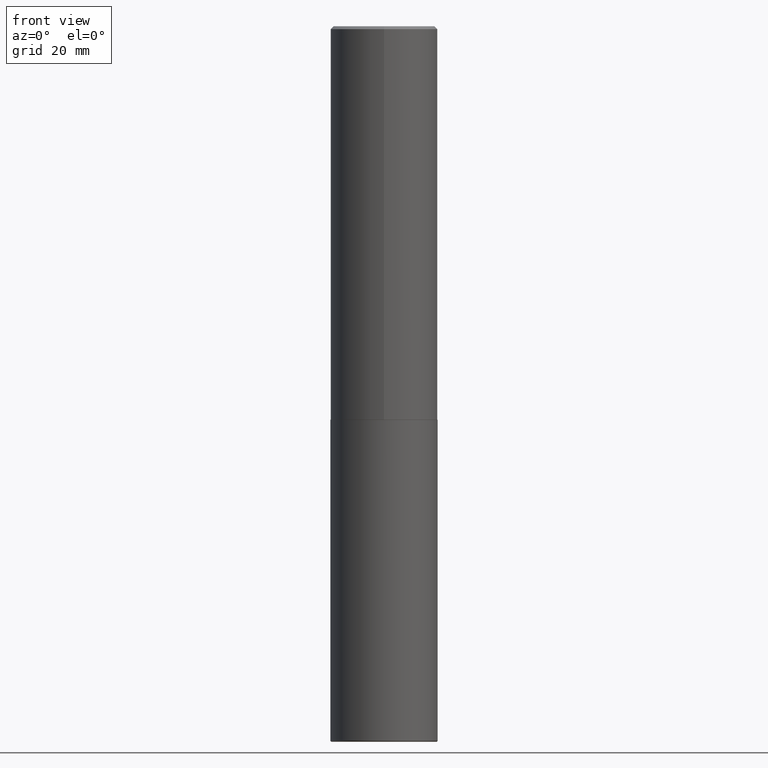
[diagram: clean part render]
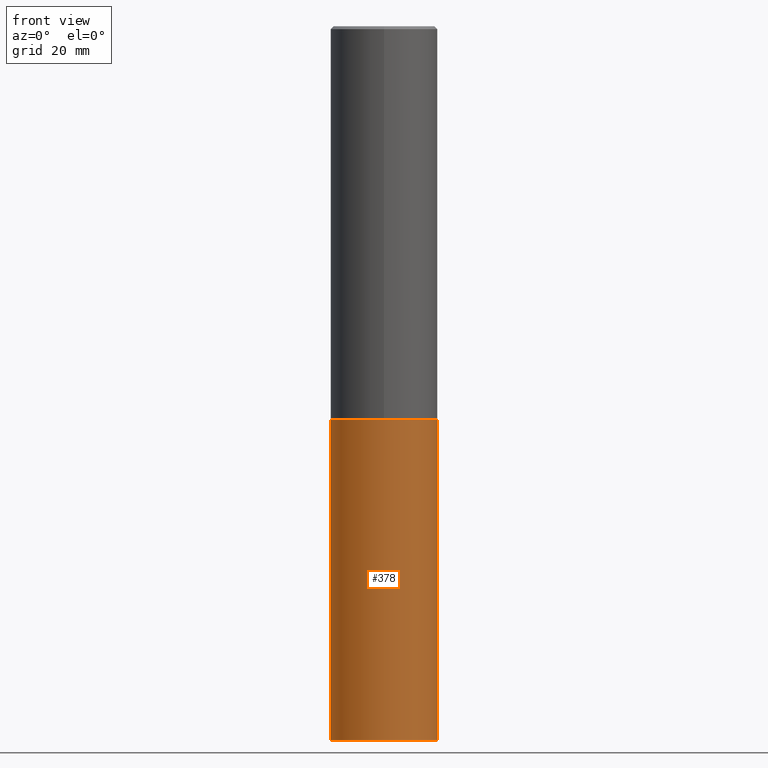
[diagram: same view with one face highlighted and labeled with its STEP entity id]
A machine part, front view. The second image highlights one B-rep face of the part: STEP entity #378.
In plain terms, the highlighted cylindrical surface (partial cylindrical patch) has radius 9.525 mm, axis along (-0, 0, 1).
Its self-contained STEP definition (entity closure, byte-faithful):
#2 = DIRECTION ( 'NONE',  ( -2.445468806185136597E-29, 3.491481338843145583E-15, 1.000000000000000000 ) ) ;
#10 = VERTEX_POINT ( 'NONE', #168 ) ;
#27 = CARTESIAN_POINT ( 'NONE',  ( 6.725039217009124520E-29, -9.601573681818649859E-15, -2.750000000000000000 ) ) ;
#37 = LINE ( 'NONE', #113, #216 ) ;
#38 = AXIS2_PLACEMENT_3D ( 'NONE', #76, #2, #251 ) ;
#66 = VERTEX_POINT ( 'NONE', #143 ) ;
#70 = AXIS2_PLACEMENT_3D ( 'NONE', #241, #398, #368 ) ;
#76 = CARTESIAN_POINT ( 'NONE',  ( 1.220288934286383144E-28, -1.742249188082729666E-14, -4.990000000000000213 ) ) ;
#102 = CIRCLE ( 'NONE', #234, 0.3750000000000000555 ) ;
#104 = ORIENTED_EDGE ( 'NONE', *, *, #215, .T. ) ;
#113 = CARTESIAN_POINT ( 'NONE',  ( 0.3750000000000000555, -2.618611004132350016E-15, 1.828566290923476203E-29 ) ) ;
#118 = VECTOR ( 'NONE', #390, 39.37007874015748143 ) ;
#143 = CARTESIAN_POINT ( 'NONE',  ( -0.3750000000000003886, -1.475795662172691781E-14, -4.990000000000000213 ) ) ;
#146 = DIRECTION ( 'NONE',  ( -2.445468806185136597E-29, 3.491481338843145583E-15, 1.000000000000000000 ) ) ;
#152 = CYLINDRICAL_SURFACE ( 'NONE', #70, 0.3750000000000000555 ) ;
#168 = CARTESIAN_POINT ( 'NONE',  ( -0.3750000000000000555, -1.084749752222259835E-14, -2.750000000000000000 ) ) ;
#171 = EDGE_CURVE ( 'NONE', #66, #10, #388, .T. ) ;
#176 = EDGE_CURVE ( 'NONE', #418, #185, #37, .T. ) ;
#185 = VERTEX_POINT ( 'NONE', #320 ) ;
#215 = EDGE_CURVE ( 'NONE', #66, #418, #225, .T. ) ;
#216 = VECTOR ( 'NONE', #228, 39.37007874015748143 ) ;
#219 = ORIENTED_EDGE ( 'NONE', *, *, #176, .T. ) ;
#225 = CIRCLE ( 'NONE', #38, 0.3750000000000000555 ) ;
#228 = DIRECTION ( 'NONE',  ( -2.445468806185136877E-29, 3.491481338843145188E-15, 1.000000000000000000 ) ) ;
#234 = AXIS2_PLACEMENT_3D ( 'NONE', #27, #146, #265 ) ;
#241 = CARTESIAN_POINT ( 'NONE',  ( 0.000000000000000000, 0.000000000000000000, 0.000000000000000000 ) ) ;
#251 = DIRECTION ( 'NONE',  ( 1.000000000000000000, -6.982962677686261189E-15, 0.000000000000000000 ) ) ;
#256 = CARTESIAN_POINT ( 'NONE',  ( 0.3750000000000003886, -2.004110288495964667E-14, -4.990000000000000213 ) ) ;
#265 = DIRECTION ( 'NONE',  ( 1.000000000000000000, -6.982962677686266711E-15, 0.000000000000000000 ) ) ;
#314 = CARTESIAN_POINT ( 'NONE',  ( -0.3750000000000000555, 2.664535259100376091E-15, -1.844600658845589598E-29 ) ) ;
#318 = EDGE_LOOP ( 'NONE', ( #334, #104, #219, #357 ) ) ;
#320 = CARTESIAN_POINT ( 'NONE',  ( 0.3750000000000000555, -1.222018468595100145E-14, -2.750000000000000000 ) ) ;
#334 = ORIENTED_EDGE ( 'NONE', *, *, #171, .F. ) ;
#357 = ORIENTED_EDGE ( 'NONE', *, *, #360, .F. ) ;
#360 = EDGE_CURVE ( 'NONE', #10, #185, #102, .T. ) ;
#368 = DIRECTION ( 'NONE',  ( 1.000000000000000000, -6.982962677686265922E-15, 4.876176775795935793E-29 ) ) ;
#378 = ADVANCED_FACE ( 'NONE', ( #399 ), #152, .T. ) ;
#388 = LINE ( 'NONE', #314, #118 ) ;
#390 = DIRECTION ( 'NONE',  ( -2.445468806185136877E-29, 3.491481338843145188E-15, 1.000000000000000000 ) ) ;
#398 = DIRECTION ( 'NONE',  ( -2.445468806185136597E-29, 3.491481338843145583E-15, 1.000000000000000000 ) ) ;
#399 = FACE_OUTER_BOUND ( 'NONE', #318, .T. ) ;
#418 = VERTEX_POINT ( 'NONE', #256 ) ;